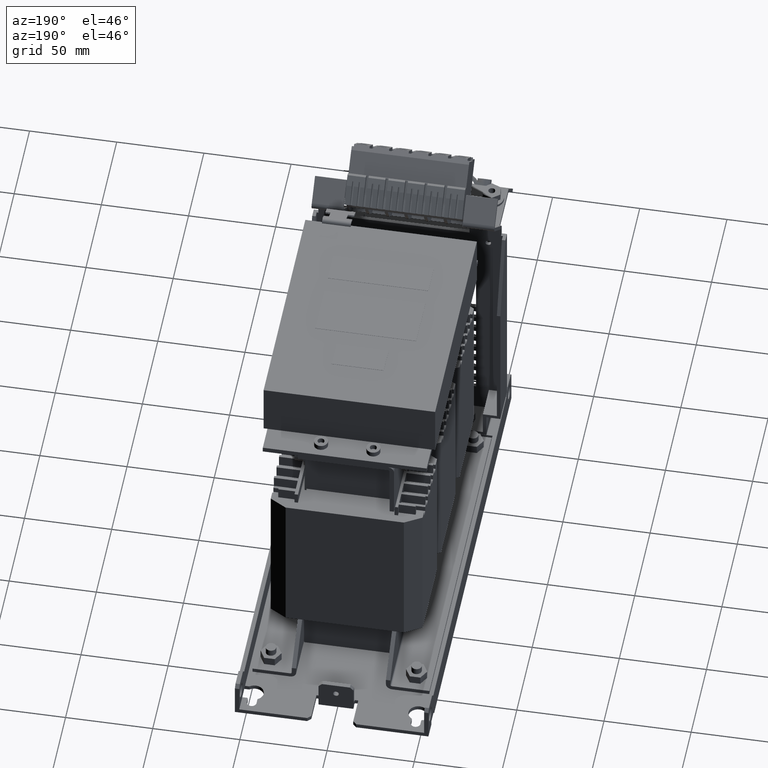
[diagram: clean part render]
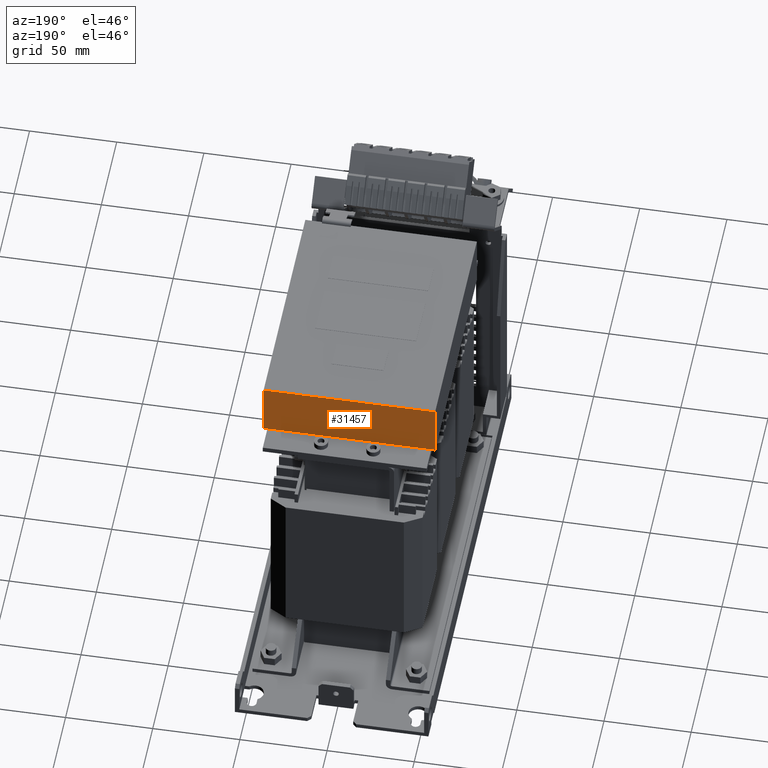
[diagram: same view with one face highlighted and labeled with its STEP entity id]
A machine part, auxiliary view. The second image highlights one B-rep face of the part: STEP entity #31457.
In plain terms, the highlighted planar face has unit normal (0, 1, 0).
Its self-contained STEP definition (entity closure, byte-faithful):
#19772=DIRECTION('',(-1.E0,0.E0,0.E0));
#19773=VECTOR('',#19772,2.2E0);
#19774=CARTESIAN_POINT('',(4.92E1,7.739999999999E1,1.705E2));
#19775=LINE('',#19774,#19773);
#19776=DIRECTION('',(-1.E0,0.E0,5.167583532800E-14));
#19777=VECTOR('',#19776,2.2E0);
#19778=CARTESIAN_POINT('',(-4.7E1,7.739999999999E1,1.705E2));
#19779=LINE('',#19778,#19777);
#20010=DIRECTION('',(-1.E0,0.E0,0.E0));
#20011=VECTOR('',#20010,9.84E1);
#20012=CARTESIAN_POINT('',(4.92E1,7.739999999999E1,2.015E2));
#20013=LINE('',#20012,#20011);
#20128=DIRECTION('',(0.E0,0.E0,-1.E0));
#20129=VECTOR('',#20128,3.1E1);
#20130=CARTESIAN_POINT('',(-4.92E1,7.739999999999E1,2.015E2));
#20131=LINE('',#20130,#20129);
#20132=DIRECTION('',(0.E0,0.E0,-1.E0));
#20133=VECTOR('',#20132,3.1E1);
#20134=CARTESIAN_POINT('',(4.92E1,7.739999999999E1,2.015E2));
#20135=LINE('',#20134,#20133);
#20136=DIRECTION('',(1.E0,0.E0,0.E0));
#20137=VECTOR('',#20136,9.4E1);
#20138=CARTESIAN_POINT('',(-4.7E1,7.739999999999E1,1.705E2));
#20139=LINE('',#20138,#20137);
#23127=CARTESIAN_POINT('',(4.92E1,7.739999999999E1,2.015E2));
#23129=VERTEX_POINT('',#23127);
#23130=CARTESIAN_POINT('',(-4.92E1,7.739999999999E1,2.015E2));
#23131=VERTEX_POINT('',#23130);
#23135=CARTESIAN_POINT('',(4.92E1,7.739999999999E1,1.705E2));
#23137=VERTEX_POINT('',#23135);
#23138=CARTESIAN_POINT('',(-4.92E1,7.739999999999E1,1.705E2));
#23140=VERTEX_POINT('',#23138);
#23143=CARTESIAN_POINT('',(4.7E1,7.739999999999E1,1.705E2));
#23145=VERTEX_POINT('',#23143);
#23147=CARTESIAN_POINT('',(-4.7E1,7.739999999999E1,1.705E2));
#23149=VERTEX_POINT('',#23147);
#31442=CARTESIAN_POINT('',(4.92E1,7.739999999999E1,2.015E2));
#31443=DIRECTION('',(0.E0,1.E0,0.E0));
#31444=DIRECTION('',(-1.E0,0.E0,0.E0));
#31445=AXIS2_PLACEMENT_3D('',#31442,#31443,#31444);
#31446=PLANE('',#31445);
#31448=ORIENTED_EDGE('',*,*,#31447,.T.);
#31449=ORIENTED_EDGE('',*,*,#30892,.F.);
#31451=ORIENTED_EDGE('',*,*,#31450,.F.);
#31452=ORIENTED_EDGE('',*,*,#31175,.T.);
#31453=ORIENTED_EDGE('',*,*,#31437,.T.);
#31454=ORIENTED_EDGE('',*,*,#30904,.F.);
#31455=EDGE_LOOP('',(#31448,#31449,#31451,#31452,#31453,#31454));
#31456=FACE_OUTER_BOUND('',#31455,.F.);
#31457=ADVANCED_FACE('',(#31456),#31446,.T.);
#30892=EDGE_CURVE('',#23137,#23145,#19775,.T.);
#30904=EDGE_CURVE('',#23149,#23140,#19779,.T.);
#31175=EDGE_CURVE('',#23129,#23131,#20013,.T.);
#31437=EDGE_CURVE('',#23131,#23140,#20131,.T.);
#31447=EDGE_CURVE('',#23149,#23145,#20139,.T.);
#31450=EDGE_CURVE('',#23129,#23137,#20135,.T.);